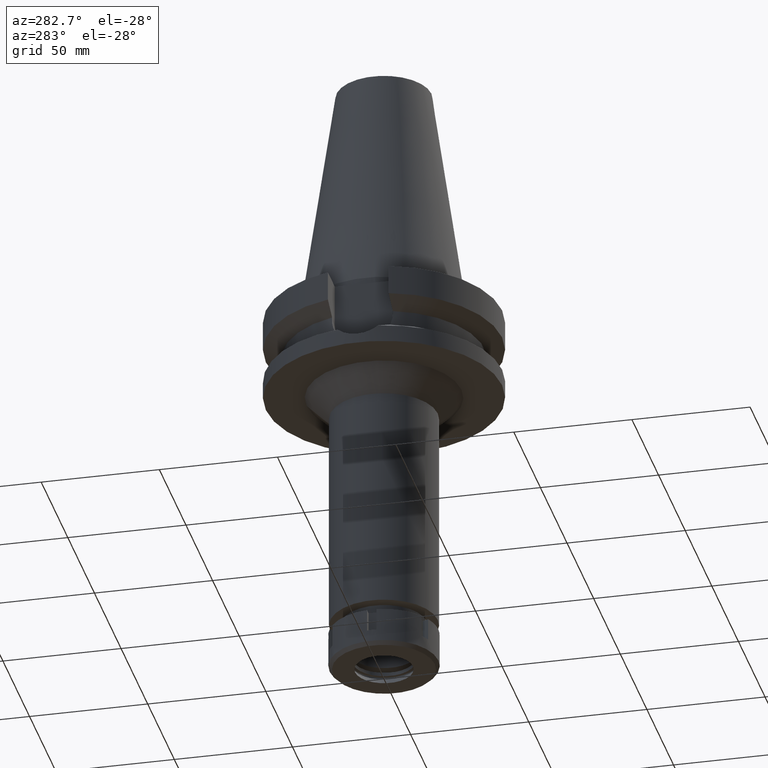
[diagram: clean part render]
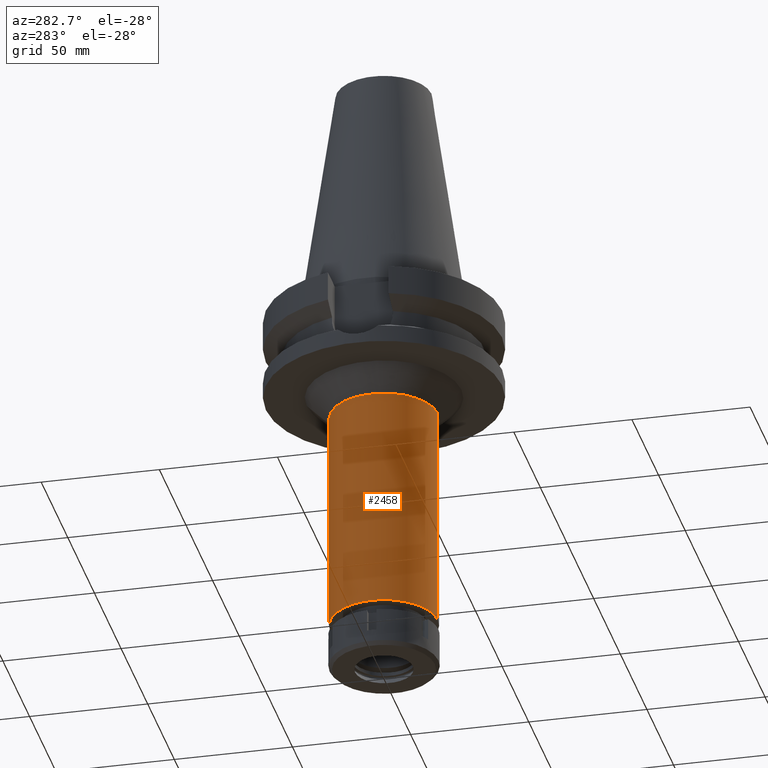
[diagram: same view with one face highlighted and labeled with its STEP entity id]
A machine part, auxiliary view. The second image highlights one B-rep face of the part: STEP entity #2458.
In plain terms, the highlighted cylindrical surface (partial cylindrical patch) has radius 22.75 mm, axis along (0, 0, -1).
Its self-contained STEP definition (entity closure, byte-faithful):
#184 = DIRECTION ( 'NONE',  ( 0.0000000000000000000, 0.0000000000000000000, -1.000000000000000000 ) ) ;
#265 = CARTESIAN_POINT ( 'NONE',  ( 0.0000000000000000000, 22.75000000000000000, -144.5000000000000000 ) ) ;
#341 = CARTESIAN_POINT ( 'NONE',  ( 0.0000000000000000000, 2.629806536488999751E-14, -144.5000000000000000 ) ) ;
#380 = AXIS2_PLACEMENT_3D ( 'NONE', #2941, #908, #2721 ) ;
#390 = AXIS2_PLACEMENT_3D ( 'NONE', #1059, #184, #1816 ) ;
#407 = CYLINDRICAL_SURFACE ( 'NONE', #390, 22.75000000000000000 ) ;
#800 = EDGE_CURVE ( 'NONE', #2070, #3132, #2728, .T. ) ;
#908 = DIRECTION ( 'NONE',  ( 0.0000000000000000000, 0.0000000000000000000, -1.000000000000000000 ) ) ;
#912 = ORIENTED_EDGE ( 'NONE', *, *, #800, .F. ) ;
#1059 = CARTESIAN_POINT ( 'NONE',  ( 0.0000000000000000000, 2.629806536488999751E-14, 114.7399999999999949 ) ) ;
#1077 = DIRECTION ( 'NONE',  ( 0.0000000000000000000, 0.0000000000000000000, 1.000000000000000000 ) ) ;
#1131 = VERTEX_POINT ( 'NONE', #265 ) ;
#1171 = CARTESIAN_POINT ( 'NONE',  ( 0.0000000000000000000, -22.75000000000000000, -144.5000000000000000 ) ) ;
#1292 = CARTESIAN_POINT ( 'NONE',  ( 0.0000000000000000000, 22.75000000000000000, -48.00000000000000000 ) ) ;
#1463 = CIRCLE ( 'NONE', #1878, 22.75000000000000000 ) ;
#1540 = DIRECTION ( 'NONE',  ( 0.0000000000000000000, 0.0000000000000000000, -1.000000000000000000 ) ) ;
#1816 = DIRECTION ( 'NONE',  ( 0.0000000000000000000, -1.000000000000000000, 0.0000000000000000000 ) ) ;
#1848 = DIRECTION ( 'NONE',  ( 0.0000000000000000000, 0.0000000000000000000, -1.000000000000000000 ) ) ;
#1878 = AXIS2_PLACEMENT_3D ( 'NONE', #341, #1077, #2529 ) ;
#1883 = VECTOR ( 'NONE', #1848, 1000.000000000000000 ) ;
#2070 = VERTEX_POINT ( 'NONE', #3312 ) ;
#2087 = ORIENTED_EDGE ( 'NONE', *, *, #2801, .T. ) ;
#2125 = EDGE_CURVE ( 'NONE', #3639, #1131, #2949, .T. ) ;
#2380 = ORIENTED_EDGE ( 'NONE', *, *, #2125, .T. ) ;
#2419 = ORIENTED_EDGE ( 'NONE', *, *, #2678, .T. ) ;
#2426 = EDGE_LOOP ( 'NONE', ( #2419, #912, #2087, #2380 ) ) ;
#2446 = CARTESIAN_POINT ( 'NONE',  ( 0.0000000000000000000, -22.75000000000000000, -48.00000000000000000 ) ) ;
#2458 = ADVANCED_FACE ( 'NONE', ( #2992 ), #407, .T. ) ;
#2529 = DIRECTION ( 'NONE',  ( 0.0000000000000000000, 1.000000000000000000, 0.0000000000000000000 ) ) ;
#2678 = EDGE_CURVE ( 'NONE', #1131, #3132, #1463, .T. ) ;
#2721 = DIRECTION ( 'NONE',  ( 0.0000000000000000000, -1.000000000000000000, 0.0000000000000000000 ) ) ;
#2728 = LINE ( 'NONE', #2446, #1883 ) ;
#2801 = EDGE_CURVE ( 'NONE', #2070, #3639, #3378, .T. ) ;
#2941 = CARTESIAN_POINT ( 'NONE',  ( 0.0000000000000000000, 0.0000000000000000000, -48.00000000000000000 ) ) ;
#2949 = LINE ( 'NONE', #3602, #3039 ) ;
#2992 = FACE_OUTER_BOUND ( 'NONE', #2426, .T. ) ;
#3039 = VECTOR ( 'NONE', #1540, 1000.000000000000000 ) ;
#3132 = VERTEX_POINT ( 'NONE', #1171 ) ;
#3312 = CARTESIAN_POINT ( 'NONE',  ( 0.0000000000000000000, -22.75000000000000000, -48.00000000000000000 ) ) ;
#3378 = CIRCLE ( 'NONE', #380, 22.75000000000000000 ) ;
#3602 = CARTESIAN_POINT ( 'NONE',  ( 0.0000000000000000000, 22.75000000000000000, -48.00000000000000000 ) ) ;
#3639 = VERTEX_POINT ( 'NONE', #1292 ) ;